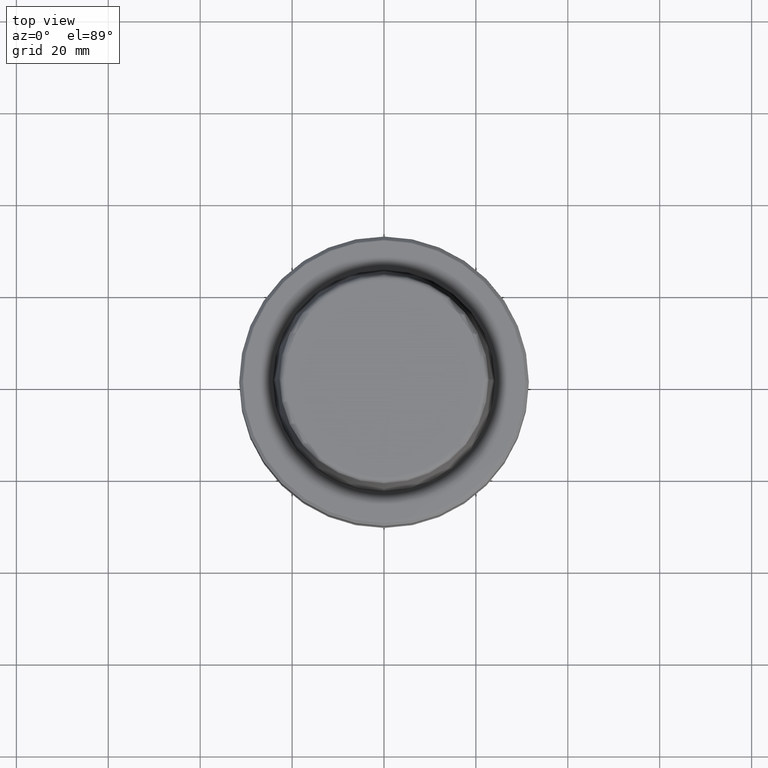
[diagram: clean part render]
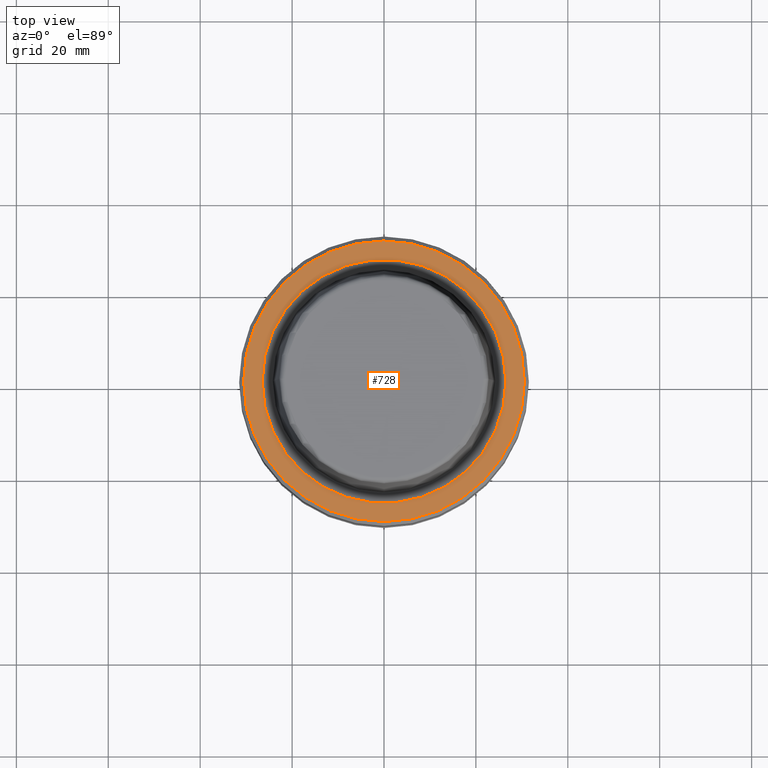
[diagram: same view with one face highlighted and labeled with its STEP entity id]
A machine part, top view. The second image highlights one B-rep face of the part: STEP entity #728.
In plain terms, the highlighted planar face has unit normal (0, 0, -1).
Its self-contained STEP definition (entity closure, byte-faithful):
#10 = VERTEX_POINT ( 'NONE', #1013 ) ;
#12 = DIRECTION ( 'NONE',  ( -0.0000000000000000000, -0.0000000000000000000, 1.000000000000000000 ) ) ;
#33 = CARTESIAN_POINT ( 'NONE',  ( 30.53431457505076100, 0.0000000000000000000, 0.0000000000000000000 ) ) ;
#124 = DIRECTION ( 'NONE',  ( 1.000000000000000000, 0.0000000000000000000, 0.0000000000000000000 ) ) ;
#125 = DIRECTION ( 'NONE',  ( -1.000000000000000000, 0.0000000000000000000, -0.0000000000000000000 ) ) ;
#134 = EDGE_CURVE ( 'NONE', #10, #1270, #352, .T. ) ;
#141 = ORIENTED_EDGE ( 'NONE', *, *, #156, .T. ) ;
#156 = EDGE_CURVE ( 'NONE', #331, #493, #510, .T. ) ;
#189 = AXIS2_PLACEMENT_3D ( 'NONE', #671, #894, #125 ) ;
#198 = DIRECTION ( 'NONE',  ( -0.0000000000000000000, -0.0000000000000000000, 1.000000000000000000 ) ) ;
#204 = EDGE_CURVE ( 'NONE', #1270, #10, #1008, .T. ) ;
#206 = ORIENTED_EDGE ( 'NONE', *, *, #134, .F. ) ;
#212 = EDGE_CURVE ( 'NONE', #493, #331, #217, .T. ) ;
#217 = CIRCLE ( 'NONE', #421, 30.53431457505076100 ) ;
#225 = CARTESIAN_POINT ( 'NONE',  ( 0.0000000000000000000, 0.0000000000000000000, 0.0000000000000000000 ) ) ;
#274 = FACE_BOUND ( 'NONE', #307, .T. ) ;
#307 = EDGE_LOOP ( 'NONE', ( #999, #206 ) ) ;
#315 = CARTESIAN_POINT ( 'NONE',  ( -30.53431457505076100, 3.756694181974138600E-015, 0.0000000000000000000 ) ) ;
#331 = VERTEX_POINT ( 'NONE', #315 ) ;
#352 = CIRCLE ( 'NONE', #696, 26.52499999999999900 ) ;
#421 = AXIS2_PLACEMENT_3D ( 'NONE', #1053, #198, #124 ) ;
#493 = VERTEX_POINT ( 'NONE', #33 ) ;
#495 = ORIENTED_EDGE ( 'NONE', *, *, #212, .T. ) ;
#510 = CIRCLE ( 'NONE', #1137, 30.53431457505076100 ) ;
#522 = FACE_OUTER_BOUND ( 'NONE', #524, .T. ) ;
#524 = EDGE_LOOP ( 'NONE', ( #495, #141 ) ) ;
#589 = CARTESIAN_POINT ( 'NONE',  ( 0.0000000000000000000, 0.0000000000000000000, 0.0000000000000000000 ) ) ;
#648 = CARTESIAN_POINT ( 'NONE',  ( 26.52499999999999900, 0.0000000000000000000, 0.0000000000000000000 ) ) ;
#671 = CARTESIAN_POINT ( 'NONE',  ( 0.0000000000000000000, 26.52499999999999900, -1.111307226797642000E-015 ) ) ;
#686 = AXIS2_PLACEMENT_3D ( 'NONE', #589, #12, #922 ) ;
#696 = AXIS2_PLACEMENT_3D ( 'NONE', #980, #915, #1087 ) ;
#728 = ADVANCED_FACE ( 'NONE', ( #274, #522 ), #1108, .F. ) ;
#894 = DIRECTION ( 'NONE',  ( 0.0000000000000000000, 0.0000000000000000000, -1.000000000000000000 ) ) ;
#915 = DIRECTION ( 'NONE',  ( -0.0000000000000000000, -0.0000000000000000000, 1.000000000000000000 ) ) ;
#922 = DIRECTION ( 'NONE',  ( 1.000000000000000000, 0.0000000000000000000, 0.0000000000000000000 ) ) ;
#980 = CARTESIAN_POINT ( 'NONE',  ( 0.0000000000000000000, 0.0000000000000000000, 0.0000000000000000000 ) ) ;
#999 = ORIENTED_EDGE ( 'NONE', *, *, #204, .F. ) ;
#1008 = CIRCLE ( 'NONE', #686, 26.52499999999999900 ) ;
#1013 = CARTESIAN_POINT ( 'NONE',  ( -26.52499999999999900, 3.248375634738354300E-015, 0.0000000000000000000 ) ) ;
#1053 = CARTESIAN_POINT ( 'NONE',  ( 0.0000000000000000000, 0.0000000000000000000, 0.0000000000000000000 ) ) ;
#1079 = DIRECTION ( 'NONE',  ( -0.0000000000000000000, -0.0000000000000000000, 1.000000000000000000 ) ) ;
#1087 = DIRECTION ( 'NONE',  ( 1.000000000000000000, 0.0000000000000000000, 0.0000000000000000000 ) ) ;
#1108 = PLANE ( 'NONE',  #189 ) ;
#1111 = DIRECTION ( 'NONE',  ( 1.000000000000000000, 0.0000000000000000000, 0.0000000000000000000 ) ) ;
#1137 = AXIS2_PLACEMENT_3D ( 'NONE', #225, #1079, #1111 ) ;
#1270 = VERTEX_POINT ( 'NONE', #648 ) ;